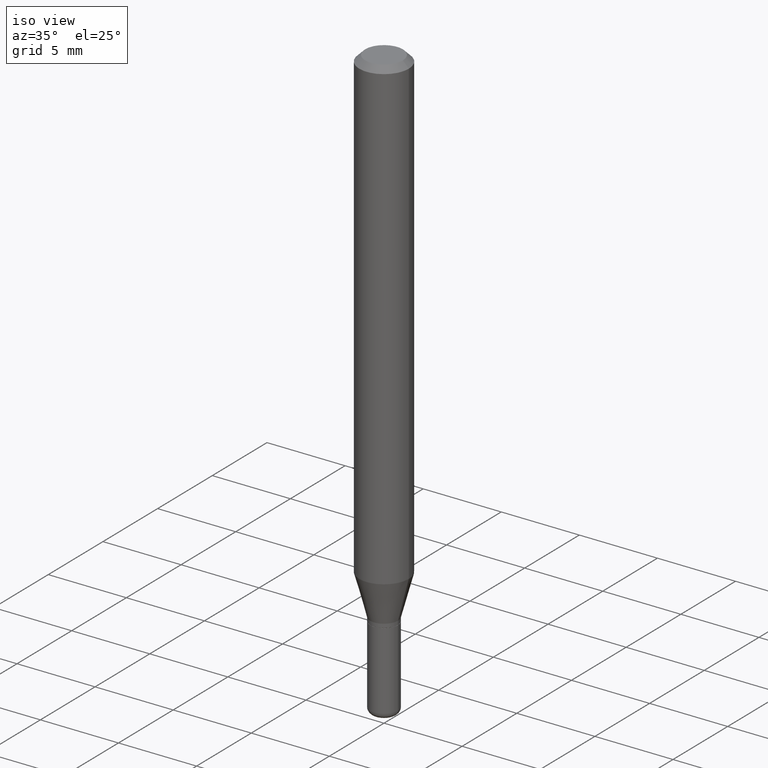
[diagram: clean part render]
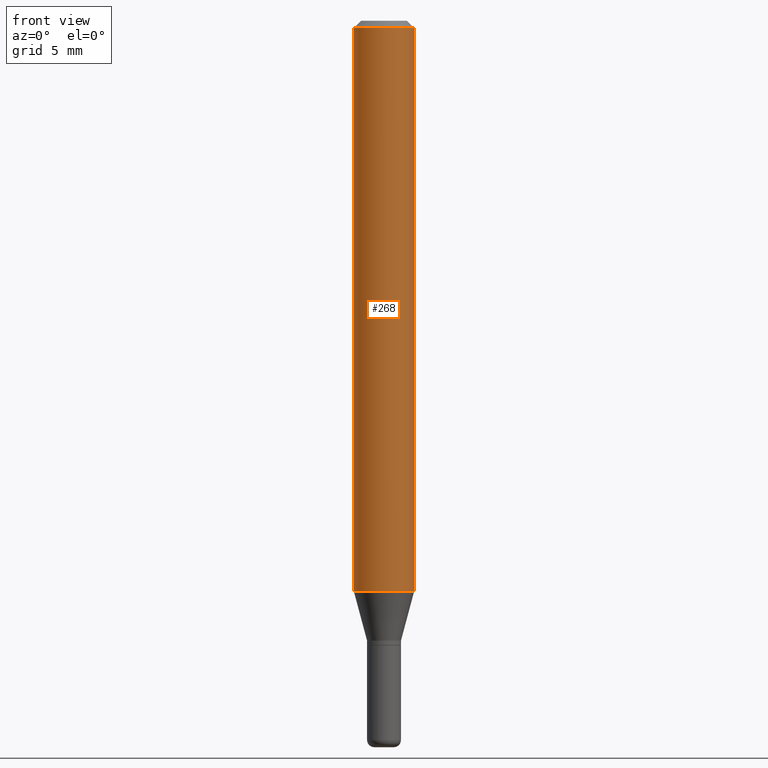
[diagram: tour spotlight — one face highlighted and labeled with its STEP entity id]
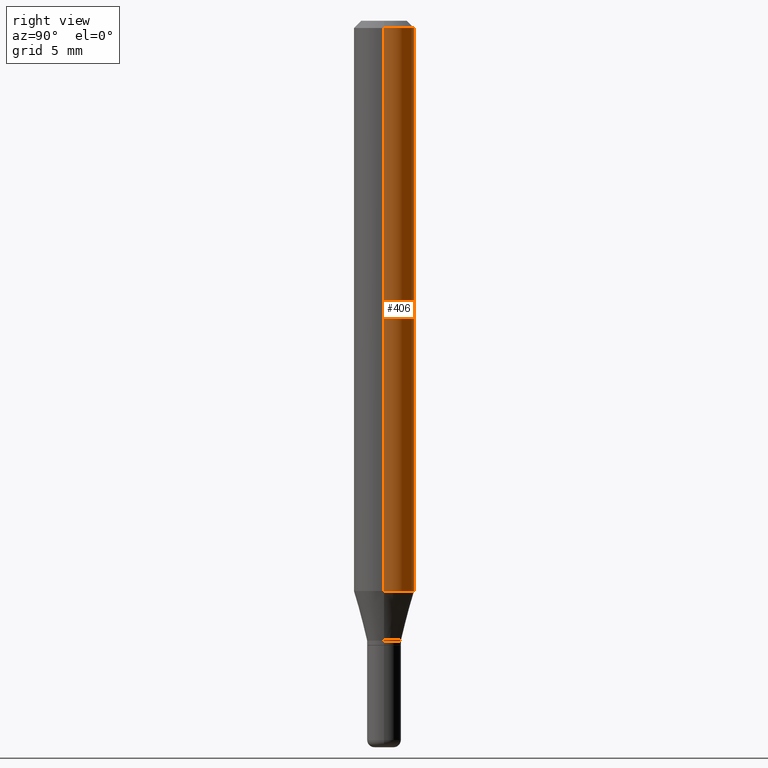
[diagram: tour spotlight — one face highlighted and labeled with its STEP entity id]
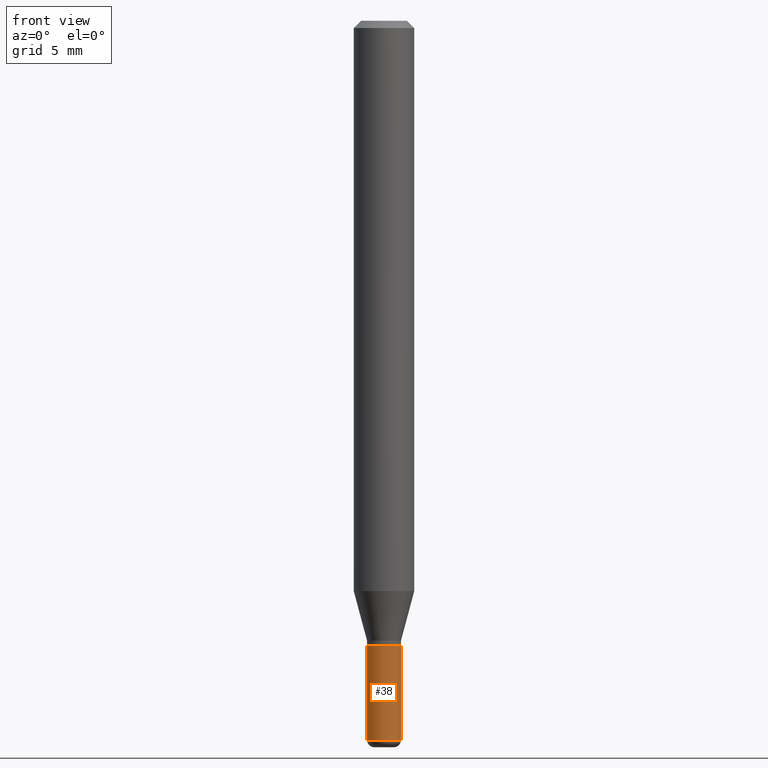
[diagram: tour spotlight — one face highlighted and labeled with its STEP entity id]
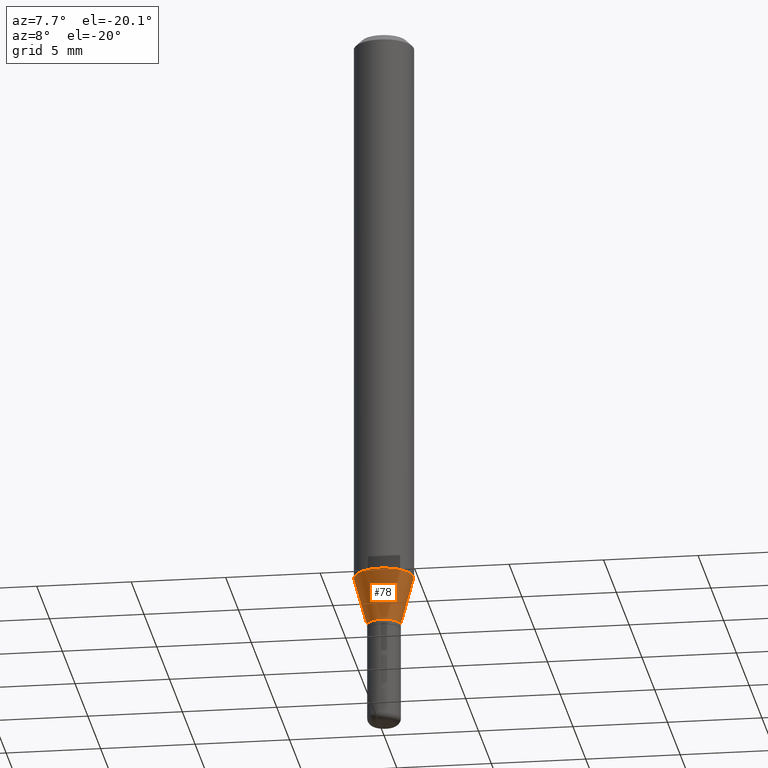
[diagram: tour spotlight — one face highlighted and labeled with its STEP entity id]
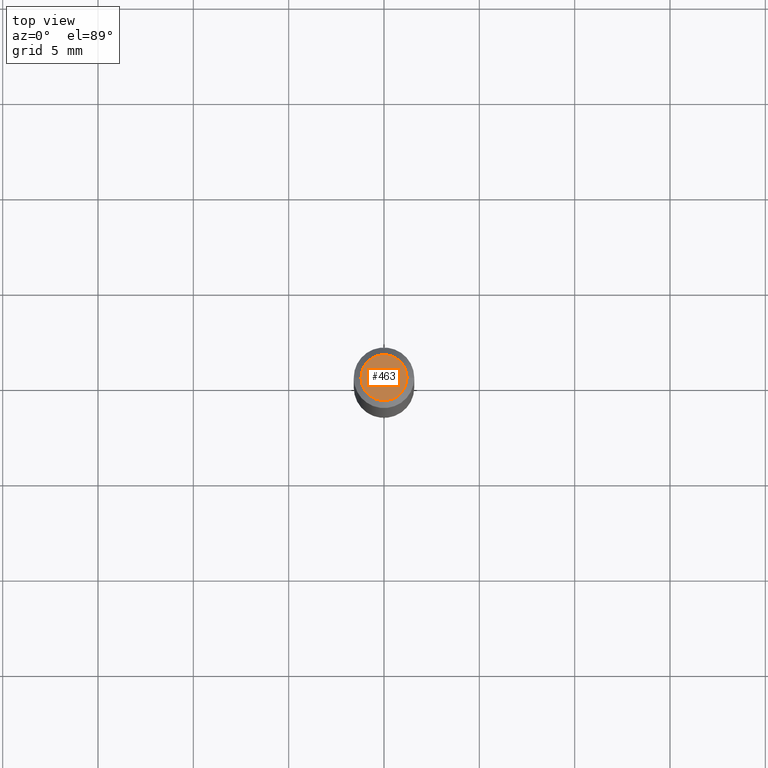
[diagram: tour spotlight — one face highlighted and labeled with its STEP entity id]
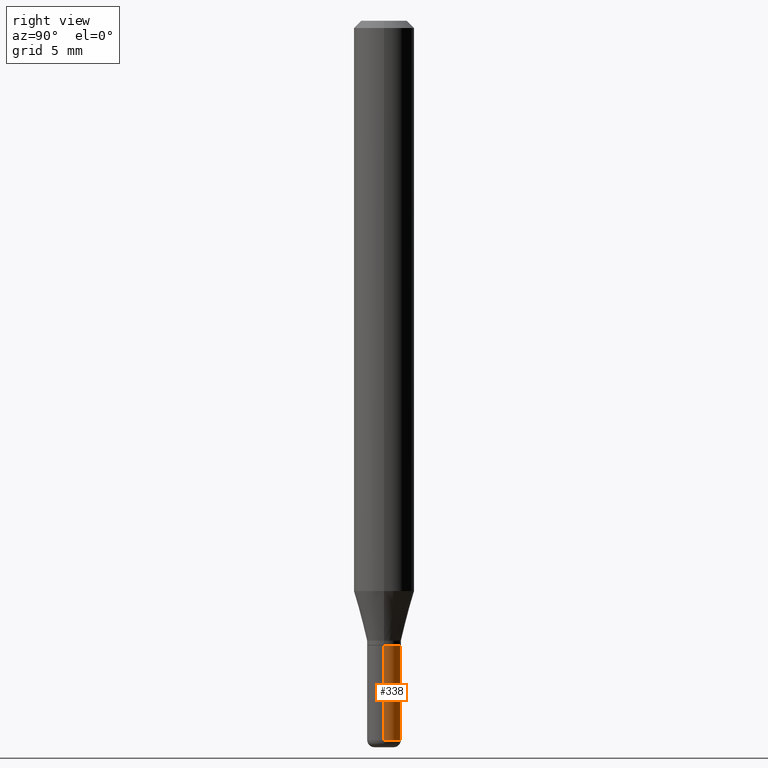
[diagram: tour spotlight — one face highlighted and labeled with its STEP entity id]
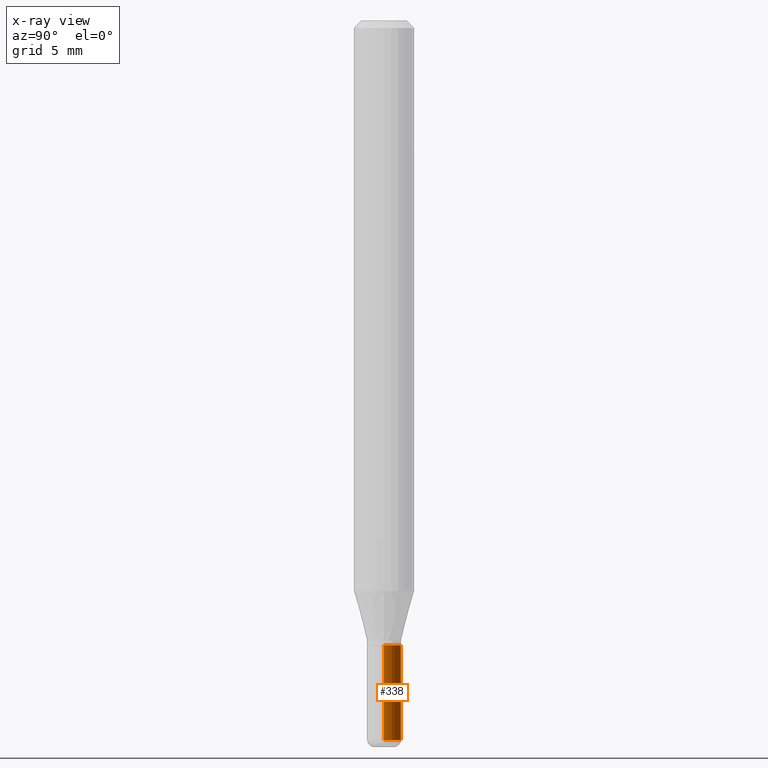
[diagram: x-ray of the same camera — body ghosted, this tour face saturated]
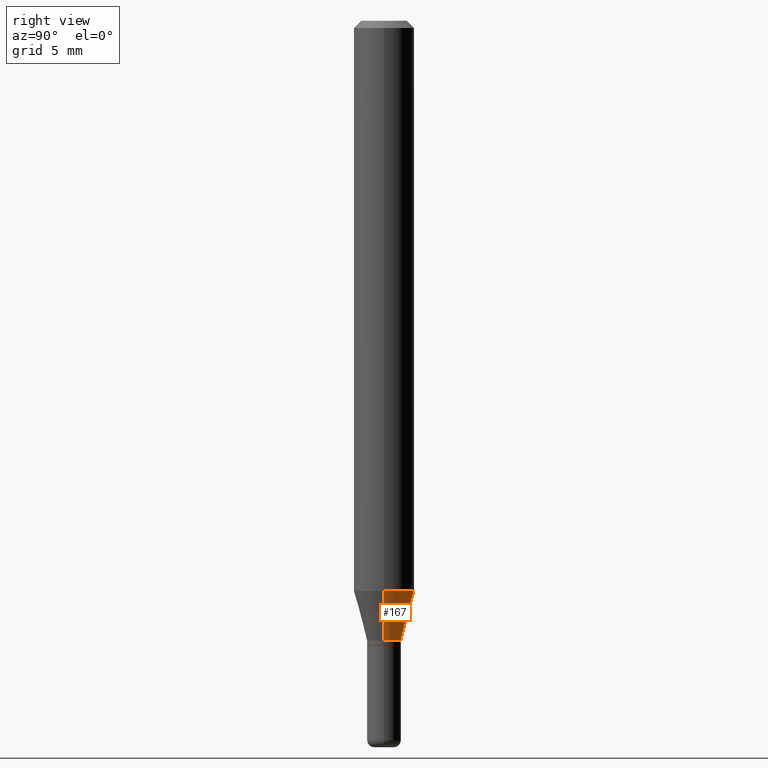
[diagram: tour spotlight — one face highlighted and labeled with its STEP entity id]
A machine part: a face-by-face anatomy tour. The part has 18 B-rep faces; the first image is the clean iso view, then the 7 largest visible faces are spotlighted one at a time (largest first), each with its STEP entity span.

Face 1 — front view, entity #268. In plain terms, the highlighted cylindrical surface (edge-blend (fillet) strip) has radius 1.5875 mm, axis along (-0, 0, 1).
Definition (entity closure, byte-faithful):
#13 = CARTESIAN_POINT ( 'NONE',  ( 3.668203209277632395E-31, -5.237222008264614861E-17, -0.01499999999999970281 ) ) ;
#45 = DIRECTION ( 'NONE',  ( -2.445468806185136597E-29, 3.491481338843145583E-15, 1.000000000000000000 ) ) ;
#48 = VECTOR ( 'NONE', #475, 39.37007874015748143 ) ;
#69 = CARTESIAN_POINT ( 'NONE',  ( -0.06250000000000000000, 4.440892098500626162E-16, -3.074334431409316114E-30 ) ) ;
#75 = CARTESIAN_POINT ( 'NONE',  ( -0.06250000000000000000, -3.666671295737530361E-15, -1.177368602791855734 ) ) ;
#83 = CARTESIAN_POINT ( 'NONE',  ( 0.000000000000000000, 0.000000000000000000, 0.000000000000000000 ) ) ;
#89 = AXIS2_PLACEMENT_3D ( 'NONE', #144, #354, #173 ) ;
#98 = CARTESIAN_POINT ( 'NONE',  ( 0.06250000000000000000, -4.888073874380378612E-16, -0.01499999999999970281 ) ) ;
#143 = VERTEX_POINT ( 'NONE', #150 ) ;
#144 = CARTESIAN_POINT ( 'NONE',  ( 2.879218191509262057E-29, -4.110760505587592188E-15, -1.177368602791855734 ) ) ;
#150 = CARTESIAN_POINT ( 'NONE',  ( -0.06250000000000000000, -1.637477152985056820E-15, -0.01499999999999970281 ) ) ;
#160 = EDGE_CURVE ( 'NONE', #178, #143, #468, .T. ) ;
#173 = DIRECTION ( 'NONE',  ( 1.000000000000000000, -6.982962677686270655E-15, 0.000000000000000000 ) ) ;
#175 = EDGE_CURVE ( 'NONE', #509, #293, #441, .T. ) ;
#178 = VERTEX_POINT ( 'NONE', #75 ) ;
#180 = EDGE_LOOP ( 'NONE', ( #314, #437, #218, #436 ) ) ;
#218 = ORIENTED_EDGE ( 'NONE', *, *, #175, .T. ) ;
#268 = ADVANCED_FACE ( 'NONE', ( #494 ), #291, .T. ) ;
#272 = DIRECTION ( 'NONE',  ( 1.000000000000000000, -6.982962677686266711E-15, 0.000000000000000000 ) ) ;
#284 = AXIS2_PLACEMENT_3D ( 'NONE', #13, #386, #272 ) ;
#291 = CYLINDRICAL_SURFACE ( 'NONE', #491, 0.06250000000000000000 ) ;
#293 = VERTEX_POINT ( 'NONE', #98 ) ;
#314 = ORIENTED_EDGE ( 'NONE', *, *, #160, .F. ) ;
#326 = CIRCLE ( 'NONE', #89, 0.06250000000000000000 ) ;
#343 = DIRECTION ( 'NONE',  ( 1.000000000000000000, -6.982962677686266711E-15, 4.876176775795935793E-29 ) ) ;
#347 = CARTESIAN_POINT ( 'NONE',  ( 0.06250000000000000000, -4.547195672942984647E-15, -1.177368602791855734 ) ) ;
#354 = DIRECTION ( 'NONE',  ( -2.445468806185136597E-29, 3.491481338843145583E-15, 1.000000000000000000 ) ) ;
#356 = CARTESIAN_POINT ( 'NONE',  ( 0.06250000000000000000, -4.364351673553916694E-16, 3.047610484872459871E-30 ) ) ;
#375 = VECTOR ( 'NONE', #429, 39.37007874015748143 ) ;
#386 = DIRECTION ( 'NONE',  ( -2.445468806185136597E-29, 3.491481338843145583E-15, 1.000000000000000000 ) ) ;
#392 = EDGE_CURVE ( 'NONE', #143, #293, #510, .T. ) ;
#429 = DIRECTION ( 'NONE',  ( -2.445468806185136877E-29, 3.491481338843145188E-15, 1.000000000000000000 ) ) ;
#436 = ORIENTED_EDGE ( 'NONE', *, *, #392, .F. ) ;
#437 = ORIENTED_EDGE ( 'NONE', *, *, #477, .T. ) ;
#441 = LINE ( 'NONE', #356, #48 ) ;
#468 = LINE ( 'NONE', #69, #375 ) ;
#475 = DIRECTION ( 'NONE',  ( -2.445468806185136877E-29, 3.491481338843145188E-15, 1.000000000000000000 ) ) ;
#477 = EDGE_CURVE ( 'NONE', #178, #509, #326, .T. ) ;
#491 = AXIS2_PLACEMENT_3D ( 'NONE', #83, #45, #343 ) ;
#494 = FACE_OUTER_BOUND ( 'NONE', #180, .T. ) ;
#509 = VERTEX_POINT ( 'NONE', #347 ) ;
#510 = CIRCLE ( 'NONE', #284, 0.06250000000000000000 ) ;

Face 2 — right view, entity #406. In plain terms, the highlighted cylindrical surface (edge-blend (fillet) strip) has radius 1.5875 mm, axis along (-0, 0, 1).
Definition (entity closure, byte-faithful):
#8 = ORIENTED_EDGE ( 'NONE', *, *, #171, .F. ) ;
#24 = FACE_OUTER_BOUND ( 'NONE', #121, .T. ) ;
#48 = VECTOR ( 'NONE', #475, 39.37007874015748143 ) ;
#69 = CARTESIAN_POINT ( 'NONE',  ( -0.06250000000000000000, 4.440892098500626162E-16, -3.074334431409316114E-30 ) ) ;
#75 = CARTESIAN_POINT ( 'NONE',  ( -0.06250000000000000000, -3.666671295737530361E-15, -1.177368602791855734 ) ) ;
#79 = DIRECTION ( 'NONE',  ( 1.000000000000000000, -6.982962677686266711E-15, 4.876176775795935793E-29 ) ) ;
#97 = ORIENTED_EDGE ( 'NONE', *, *, #175, .F. ) ;
#98 = CARTESIAN_POINT ( 'NONE',  ( 0.06250000000000000000, -4.888073874380378612E-16, -0.01499999999999970281 ) ) ;
#121 = EDGE_LOOP ( 'NONE', ( #514, #332, #8, #97 ) ) ;
#124 = CIRCLE ( 'NONE', #409, 0.06250000000000000000 ) ;
#127 = CARTESIAN_POINT ( 'NONE',  ( 0.000000000000000000, 0.000000000000000000, 0.000000000000000000 ) ) ;
#130 = EDGE_CURVE ( 'NONE', #509, #178, #124, .T. ) ;
#143 = VERTEX_POINT ( 'NONE', #150 ) ;
#150 = CARTESIAN_POINT ( 'NONE',  ( -0.06250000000000000000, -1.637477152985056820E-15, -0.01499999999999970281 ) ) ;
#160 = EDGE_CURVE ( 'NONE', #178, #143, #468, .T. ) ;
#163 = DIRECTION ( 'NONE',  ( -2.445468806185136597E-29, 3.491481338843145583E-15, 1.000000000000000000 ) ) ;
#171 = EDGE_CURVE ( 'NONE', #293, #143, #443, .T. ) ;
#175 = EDGE_CURVE ( 'NONE', #509, #293, #441, .T. ) ;
#178 = VERTEX_POINT ( 'NONE', #75 ) ;
#179 = AXIS2_PLACEMENT_3D ( 'NONE', #127, #163, #79 ) ;
#185 = DIRECTION ( 'NONE',  ( -2.445468806185136597E-29, 3.491481338843145583E-15, 1.000000000000000000 ) ) ;
#188 = CARTESIAN_POINT ( 'NONE',  ( 3.668203209277632395E-31, -5.237222008264614861E-17, -0.01499999999999970281 ) ) ;
#237 = DIRECTION ( 'NONE',  ( 1.000000000000000000, -6.982962677686266711E-15, 0.000000000000000000 ) ) ;
#276 = CYLINDRICAL_SURFACE ( 'NONE', #179, 0.06250000000000000000 ) ;
#293 = VERTEX_POINT ( 'NONE', #98 ) ;
#307 = CARTESIAN_POINT ( 'NONE',  ( 2.879218191509262057E-29, -4.110760505587592188E-15, -1.177368602791855734 ) ) ;
#332 = ORIENTED_EDGE ( 'NONE', *, *, #160, .T. ) ;
#347 = CARTESIAN_POINT ( 'NONE',  ( 0.06250000000000000000, -4.547195672942984647E-15, -1.177368602791855734 ) ) ;
#356 = CARTESIAN_POINT ( 'NONE',  ( 0.06250000000000000000, -4.364351673553916694E-16, 3.047610484872459871E-30 ) ) ;
#375 = VECTOR ( 'NONE', #429, 39.37007874015748143 ) ;
#393 = DIRECTION ( 'NONE',  ( 1.000000000000000000, -6.982962677686270655E-15, 0.000000000000000000 ) ) ;
#406 = ADVANCED_FACE ( 'NONE', ( #24 ), #276, .T. ) ;
#409 = AXIS2_PLACEMENT_3D ( 'NONE', #307, #185, #393 ) ;
#429 = DIRECTION ( 'NONE',  ( -2.445468806185136877E-29, 3.491481338843145188E-15, 1.000000000000000000 ) ) ;
#441 = LINE ( 'NONE', #356, #48 ) ;
#443 = CIRCLE ( 'NONE', #449, 0.06250000000000000000 ) ;
#449 = AXIS2_PLACEMENT_3D ( 'NONE', #188, #511, #237 ) ;
#468 = LINE ( 'NONE', #69, #375 ) ;
#475 = DIRECTION ( 'NONE',  ( -2.445468806185136877E-29, 3.491481338843145188E-15, 1.000000000000000000 ) ) ;
#509 = VERTEX_POINT ( 'NONE', #347 ) ;
#511 = DIRECTION ( 'NONE',  ( -2.445468806185136597E-29, 3.491481338843145583E-15, 1.000000000000000000 ) ) ;
#514 = ORIENTED_EDGE ( 'NONE', *, *, #130, .T. ) ;

Face 3 — front view, entity #38. In plain terms, the highlighted cylindrical surface (edge-blend (fillet) strip) has radius 0.889 mm, axis along (-0, 0, 1).
Definition (entity closure, byte-faithful):
#5 = CARTESIAN_POINT ( 'NONE',  ( 0.000000000000000000, 0.000000000000000000, 0.000000000000000000 ) ) ;
#19 = CIRCLE ( 'NONE', #368, 0.03499999999999998945 ) ;
#29 = AXIS2_PLACEMENT_3D ( 'NONE', #5, #459, #373 ) ;
#38 = ADVANCED_FACE ( 'NONE', ( #380 ), #305, .T. ) ;
#40 = VECTOR ( 'NONE', #351, 39.37007874015748143 ) ;
#70 = DIRECTION ( 'NONE',  ( 1.000000000000000000, -6.982962677686276966E-15, 0.000000000000000000 ) ) ;
#73 = AXIS2_PLACEMENT_3D ( 'NONE', #390, #217, #70 ) ;
#109 = EDGE_CURVE ( 'NONE', #196, #111, #308, .T. ) ;
#111 = VERTEX_POINT ( 'NONE', #435 ) ;
#112 = DIRECTION ( 'NONE',  ( -2.445468806185136597E-29, 3.491481338843145583E-15, 1.000000000000000000 ) ) ;
#116 = DIRECTION ( 'NONE',  ( -2.445468806185136877E-29, 3.491481338843145188E-15, 1.000000000000000000 ) ) ;
#125 = VECTOR ( 'NONE', #116, 39.37007874015748143 ) ;
#146 = LINE ( 'NONE', #507, #125 ) ;
#155 = ORIENTED_EDGE ( 'NONE', *, *, #109, .F. ) ;
#159 = CARTESIAN_POINT ( 'NONE',  ( -0.03499999999999999639, 2.486899575160350394E-16, -1.721627281589216757E-30 ) ) ;
#187 = ORIENTED_EDGE ( 'NONE', *, *, #337, .T. ) ;
#196 = VERTEX_POINT ( 'NONE', #444 ) ;
#217 = DIRECTION ( 'NONE',  ( -2.445468806185136597E-29, 3.491481338843145583E-15, 1.000000000000000000 ) ) ;
#266 = LINE ( 'NONE', #159, #40 ) ;
#305 = CYLINDRICAL_SURFACE ( 'NONE', #29, 0.03499999999999999639 ) ;
#308 = CIRCLE ( 'NONE', #73, 0.03500000000000000333 ) ;
#319 = EDGE_CURVE ( 'NONE', #405, #196, #266, .T. ) ;
#329 = ORIENTED_EDGE ( 'NONE', *, *, #453, .T. ) ;
#337 = EDGE_CURVE ( 'NONE', #467, #111, #146, .T. ) ;
#351 = DIRECTION ( 'NONE',  ( -2.445468806185136877E-29, 3.491481338843145188E-15, 1.000000000000000000 ) ) ;
#368 = AXIS2_PLACEMENT_3D ( 'NONE', #455, #112, #506 ) ;
#373 = DIRECTION ( 'NONE',  ( 1.000000000000000000, -6.982962677686265922E-15, 4.876176775795936353E-29 ) ) ;
#380 = FACE_OUTER_BOUND ( 'NONE', #496, .T. ) ;
#381 = CARTESIAN_POINT ( 'NONE',  ( 0.03499999999999998945, -5.429253481901091458E-15, -1.485000000000000098 ) ) ;
#390 = CARTESIAN_POINT ( 'NONE',  ( 3.154654759978826367E-29, -4.504010927107658279E-15, -1.290000000000000258 ) ) ;
#391 = CARTESIAN_POINT ( 'NONE',  ( -0.03499999999999998945, -4.595740400128830388E-15, -1.485000000000000098 ) ) ;
#405 = VERTEX_POINT ( 'NONE', #391 ) ;
#435 = CARTESIAN_POINT ( 'NONE',  ( 0.03500000000000000333, -4.748414620826678245E-15, -1.290000000000000258 ) ) ;
#444 = CARTESIAN_POINT ( 'NONE',  ( -0.03500000000000000333, -4.595740400128830388E-15, -1.290000000000000258 ) ) ;
#453 = EDGE_CURVE ( 'NONE', #405, #467, #19, .T. ) ;
#455 = CARTESIAN_POINT ( 'NONE',  ( 3.631521177184928138E-29, -5.184849788182071492E-15, -1.485000000000000098 ) ) ;
#459 = DIRECTION ( 'NONE',  ( -2.445468806185136597E-29, 3.491481338843145583E-15, 1.000000000000000000 ) ) ;
#467 = VERTEX_POINT ( 'NONE', #381 ) ;
#496 = EDGE_LOOP ( 'NONE', ( #512, #329, #187, #155 ) ) ;
#506 = DIRECTION ( 'NONE',  ( 1.000000000000000000, -6.982962677686280121E-15, 0.000000000000000000 ) ) ;
#507 = CARTESIAN_POINT ( 'NONE',  ( 0.03499999999999999639, -2.444036937190192757E-16, 1.706661871528577457E-30 ) ) ;
#512 = ORIENTED_EDGE ( 'NONE', *, *, #319, .F. ) ;

Face 4 — auxiliary view, entity #78. In plain terms, the highlighted conical surface has half-angle 15 deg.
Definition (entity closure, byte-faithful):
#2 = VECTOR ( 'NONE', #376, 39.37007874015748854 ) ;
#10 = CONICAL_SURFACE ( 'NONE', #136, 0.03499999999999998251, 0.2617993877991494633 ) ;
#26 = ORIENTED_EDGE ( 'NONE', *, *, #82, .F. ) ;
#37 = VERTEX_POINT ( 'NONE', #297 ) ;
#54 = DIRECTION ( 'NONE',  ( 0.2588190451025207395, 1.565188264969626109E-15, 0.9659258262890682012 ) ) ;
#56 = CARTESIAN_POINT ( 'NONE',  ( 3.130200071916974821E-29, -4.469096113719226630E-15, -1.280000000000000027 ) ) ;
#57 = CIRCLE ( 'NONE', #211, 0.03499999999999998251 ) ;
#75 = CARTESIAN_POINT ( 'NONE',  ( -0.06250000000000000000, -3.666671295737530361E-15, -1.177368602791855734 ) ) ;
#78 = ADVANCED_FACE ( 'NONE', ( #415 ), #10, .T. ) ;
#82 = EDGE_CURVE ( 'NONE', #504, #178, #336, .T. ) ;
#89 = AXIS2_PLACEMENT_3D ( 'NONE', #144, #354, #173 ) ;
#117 = DIRECTION ( 'NONE',  ( -2.445468806185136597E-29, 3.491481338843145583E-15, 1.000000000000000000 ) ) ;
#128 = ORIENTED_EDGE ( 'NONE', *, *, #295, .T. ) ;
#136 = AXIS2_PLACEMENT_3D ( 'NONE', #56, #212, #166 ) ;
#144 = CARTESIAN_POINT ( 'NONE',  ( 2.879218191509262057E-29, -4.110760505587592188E-15, -1.177368602791855734 ) ) ;
#166 = DIRECTION ( 'NONE',  ( 1.000000000000000000, -6.982962677686253300E-15, 0.000000000000000000 ) ) ;
#173 = DIRECTION ( 'NONE',  ( 1.000000000000000000, -6.982962677686270655E-15, 0.000000000000000000 ) ) ;
#176 = DIRECTION ( 'NONE',  ( 1.000000000000000000, -6.982962677686253300E-15, 0.000000000000000000 ) ) ;
#177 = CARTESIAN_POINT ( 'NONE',  ( -0.03499999999999998251, -3.943538725970360852E-15, -1.280000000000000027 ) ) ;
#178 = VERTEX_POINT ( 'NONE', #75 ) ;
#199 = ORIENTED_EDGE ( 'NONE', *, *, #355, .T. ) ;
#211 = AXIS2_PLACEMENT_3D ( 'NONE', #414, #117, #176 ) ;
#212 = DIRECTION ( 'NONE',  ( -2.445468806185136597E-29, 3.491481338843145583E-15, 1.000000000000000000 ) ) ;
#267 = CARTESIAN_POINT ( 'NONE',  ( 0.03499999999999998251, -4.713499807438245807E-15, -1.280000000000000027 ) ) ;
#295 = EDGE_CURVE ( 'NONE', #504, #37, #57, .T. ) ;
#297 = CARTESIAN_POINT ( 'NONE',  ( 0.03499999999999998251, -4.713499807438245807E-15, -1.280000000000000027 ) ) ;
#309 = VECTOR ( 'NONE', #54, 39.37007874015748854 ) ;
#325 = EDGE_LOOP ( 'NONE', ( #26, #128, #199, #484 ) ) ;
#326 = CIRCLE ( 'NONE', #89, 0.06250000000000000000 ) ;
#336 = LINE ( 'NONE', #452, #2 ) ;
#347 = CARTESIAN_POINT ( 'NONE',  ( 0.06250000000000000000, -4.547195672942984647E-15, -1.177368602791855734 ) ) ;
#354 = DIRECTION ( 'NONE',  ( -2.445468806185136597E-29, 3.491481338843145583E-15, 1.000000000000000000 ) ) ;
#355 = EDGE_CURVE ( 'NONE', #37, #509, #422, .T. ) ;
#376 = DIRECTION ( 'NONE',  ( -0.2588190451025207395, 5.211531920934546309E-15, 0.9659258262890682012 ) ) ;
#414 = CARTESIAN_POINT ( 'NONE',  ( 3.130200071916974821E-29, -4.469096113719226630E-15, -1.280000000000000027 ) ) ;
#415 = FACE_OUTER_BOUND ( 'NONE', #325, .T. ) ;
#422 = LINE ( 'NONE', #267, #309 ) ;
#452 = CARTESIAN_POINT ( 'NONE',  ( -0.03499999999999998251, -4.220406156203192133E-15, -1.280000000000000027 ) ) ;
#477 = EDGE_CURVE ( 'NONE', #178, #509, #326, .T. ) ;
#484 = ORIENTED_EDGE ( 'NONE', *, *, #477, .F. ) ;
#504 = VERTEX_POINT ( 'NONE', #177 ) ;
#509 = VERTEX_POINT ( 'NONE', #347 ) ;

Face 5 — top view, entity #463. In plain terms, the highlighted planar face has unit normal (0, -0, -1).
Definition (entity closure, byte-faithful):
#1 = ORIENTED_EDGE ( 'NONE', *, *, #502, .T. ) ;
#16 = CARTESIAN_POINT ( 'NONE',  ( -6.680649051745406845E-45, 9.538196290434862081E-31, 2.731847993664263218E-16 ) ) ;
#65 = CARTESIAN_POINT ( 'NONE',  ( 3.316907271900976589E-16, 0.04750000000000000749, -2.925296391183627249E-17 ) ) ;
#80 = CIRCLE ( 'NONE', #235, 0.04750000000000000749 ) ;
#94 = CARTESIAN_POINT ( 'NONE',  ( -6.680649051745406845E-45, 9.538196290434862081E-31, 2.731847993664263218E-16 ) ) ;
#147 = EDGE_LOOP ( 'NONE', ( #1, #255 ) ) ;
#153 = CARTESIAN_POINT ( 'NONE',  ( -0.04750000000000000749, 3.578768372314221353E-16, 2.731847993664239060E-16 ) ) ;
#186 = VERTEX_POINT ( 'NONE', #153 ) ;
#198 = AXIS2_PLACEMENT_3D ( 'NONE', #65, #462, #214 ) ;
#205 = AXIS2_PLACEMENT_3D ( 'NONE', #16, #216, #430 ) ;
#214 = DIRECTION ( 'NONE',  ( -1.000000000000000000, 6.982962677686265922E-15, -4.876176775795935793E-29 ) ) ;
#216 = DIRECTION ( 'NONE',  ( -2.445468806185136597E-29, 3.491481338843145583E-15, 1.000000000000000000 ) ) ;
#235 = AXIS2_PLACEMENT_3D ( 'NONE', #94, #248, #254 ) ;
#248 = DIRECTION ( 'NONE',  ( -2.445468806185136597E-29, 3.491481338843145583E-15, 1.000000000000000000 ) ) ;
#251 = EDGE_CURVE ( 'NONE', #447, #186, #80, .T. ) ;
#254 = DIRECTION ( 'NONE',  ( 1.000000000000000000, -6.982962677686266711E-15, 4.852736867747365086E-29 ) ) ;
#255 = ORIENTED_EDGE ( 'NONE', *, *, #251, .T. ) ;
#296 = CARTESIAN_POINT ( 'NONE',  ( 0.04750000000000000749, -4.035134999187568762E-16, 2.731847993664288856E-16 ) ) ;
#413 = PLANE ( 'NONE',  #198 ) ;
#430 = DIRECTION ( 'NONE',  ( 1.000000000000000000, -6.982962677686266711E-15, 4.852736867747365086E-29 ) ) ;
#431 = FACE_OUTER_BOUND ( 'NONE', #147, .T. ) ;
#447 = VERTEX_POINT ( 'NONE', #296 ) ;
#462 = DIRECTION ( 'NONE',  ( 2.438088387897960049E-29, -3.491481338843145188E-15, -1.000000000000000000 ) ) ;
#463 = ADVANCED_FACE ( 'NONE', ( #431 ), #413, .F. ) ;
#474 = CIRCLE ( 'NONE', #205, 0.04750000000000000749 ) ;
#502 = EDGE_CURVE ( 'NONE', #186, #447, #474, .T. ) ;

Face 6 — right view, entity #338. An x-ray twin of the same camera follows (body ghosted, this face saturated) — the face is partly hidden behind the body. In plain terms, the highlighted cylindrical surface (edge-blend (fillet) strip) has radius 0.889 mm, axis along (-0, 0, 1).
Definition (entity closure, byte-faithful):
#15 = ORIENTED_EDGE ( 'NONE', *, *, #337, .F. ) ;
#30 = AXIS2_PLACEMENT_3D ( 'NONE', #274, #232, #425 ) ;
#34 = DIRECTION ( 'NONE',  ( -2.445468806185136597E-29, 3.491481338843145583E-15, 1.000000000000000000 ) ) ;
#40 = VECTOR ( 'NONE', #351, 39.37007874015748143 ) ;
#111 = VERTEX_POINT ( 'NONE', #435 ) ;
#114 = EDGE_LOOP ( 'NONE', ( #369, #257, #352, #15 ) ) ;
#116 = DIRECTION ( 'NONE',  ( -2.445468806185136877E-29, 3.491481338843145188E-15, 1.000000000000000000 ) ) ;
#123 = EDGE_CURVE ( 'NONE', #467, #405, #283, .T. ) ;
#125 = VECTOR ( 'NONE', #116, 39.37007874015748143 ) ;
#131 = DIRECTION ( 'NONE',  ( -2.445468806185136597E-29, 3.491481338843145583E-15, 1.000000000000000000 ) ) ;
#146 = LINE ( 'NONE', #507, #125 ) ;
#149 = FACE_OUTER_BOUND ( 'NONE', #114, .T. ) ;
#159 = CARTESIAN_POINT ( 'NONE',  ( -0.03499999999999999639, 2.486899575160350394E-16, -1.721627281589216757E-30 ) ) ;
#196 = VERTEX_POINT ( 'NONE', #444 ) ;
#204 = AXIS2_PLACEMENT_3D ( 'NONE', #245, #131, #442 ) ;
#215 = EDGE_CURVE ( 'NONE', #111, #196, #488, .T. ) ;
#232 = DIRECTION ( 'NONE',  ( -2.445468806185136597E-29, 3.491481338843145583E-15, 1.000000000000000000 ) ) ;
#245 = CARTESIAN_POINT ( 'NONE',  ( 3.154654759978826367E-29, -4.504010927107658279E-15, -1.290000000000000258 ) ) ;
#257 = ORIENTED_EDGE ( 'NONE', *, *, #319, .T. ) ;
#265 = CYLINDRICAL_SURFACE ( 'NONE', #30, 0.03499999999999999639 ) ;
#266 = LINE ( 'NONE', #159, #40 ) ;
#274 = CARTESIAN_POINT ( 'NONE',  ( 0.000000000000000000, 0.000000000000000000, 0.000000000000000000 ) ) ;
#283 = CIRCLE ( 'NONE', #345, 0.03499999999999998945 ) ;
#319 = EDGE_CURVE ( 'NONE', #405, #196, #266, .T. ) ;
#337 = EDGE_CURVE ( 'NONE', #467, #111, #146, .T. ) ;
#338 = ADVANCED_FACE ( 'NONE', ( #149 ), #265, .T. ) ;
#345 = AXIS2_PLACEMENT_3D ( 'NONE', #513, #34, #457 ) ;
#351 = DIRECTION ( 'NONE',  ( -2.445468806185136877E-29, 3.491481338843145188E-15, 1.000000000000000000 ) ) ;
#352 = ORIENTED_EDGE ( 'NONE', *, *, #215, .F. ) ;
#369 = ORIENTED_EDGE ( 'NONE', *, *, #123, .T. ) ;
#381 = CARTESIAN_POINT ( 'NONE',  ( 0.03499999999999998945, -5.429253481901091458E-15, -1.485000000000000098 ) ) ;
#391 = CARTESIAN_POINT ( 'NONE',  ( -0.03499999999999998945, -4.595740400128830388E-15, -1.485000000000000098 ) ) ;
#405 = VERTEX_POINT ( 'NONE', #391 ) ;
#425 = DIRECTION ( 'NONE',  ( 1.000000000000000000, -6.982962677686265922E-15, 4.876176775795936353E-29 ) ) ;
#435 = CARTESIAN_POINT ( 'NONE',  ( 0.03500000000000000333, -4.748414620826678245E-15, -1.290000000000000258 ) ) ;
#442 = DIRECTION ( 'NONE',  ( 1.000000000000000000, -6.982962677686276966E-15, 0.000000000000000000 ) ) ;
#444 = CARTESIAN_POINT ( 'NONE',  ( -0.03500000000000000333, -4.595740400128830388E-15, -1.290000000000000258 ) ) ;
#457 = DIRECTION ( 'NONE',  ( 1.000000000000000000, -6.982962677686280121E-15, 0.000000000000000000 ) ) ;
#467 = VERTEX_POINT ( 'NONE', #381 ) ;
#488 = CIRCLE ( 'NONE', #204, 0.03500000000000000333 ) ;
#507 = CARTESIAN_POINT ( 'NONE',  ( 0.03499999999999999639, -2.444036937190192757E-16, 1.706661871528577457E-30 ) ) ;
#513 = CARTESIAN_POINT ( 'NONE',  ( 3.631521177184928138E-29, -5.184849788182071492E-15, -1.485000000000000098 ) ) ;

Face 7 — right view, entity #167. In plain terms, the highlighted conical surface has half-angle 15 deg.
Definition (entity closure, byte-faithful):
#2 = VECTOR ( 'NONE', #376, 39.37007874015748854 ) ;
#37 = VERTEX_POINT ( 'NONE', #297 ) ;
#54 = DIRECTION ( 'NONE',  ( 0.2588190451025207395, 1.565188264969626109E-15, 0.9659258262890682012 ) ) ;
#74 = AXIS2_PLACEMENT_3D ( 'NONE', #353, #438, #233 ) ;
#75 = CARTESIAN_POINT ( 'NONE',  ( -0.06250000000000000000, -3.666671295737530361E-15, -1.177368602791855734 ) ) ;
#76 = CONICAL_SURFACE ( 'NONE', #434, 0.03499999999999998251, 0.2617993877991494633 ) ;
#82 = EDGE_CURVE ( 'NONE', #504, #178, #336, .T. ) ;
#84 = ORIENTED_EDGE ( 'NONE', *, *, #355, .F. ) ;
#91 = ORIENTED_EDGE ( 'NONE', *, *, #139, .T. ) ;
#106 = EDGE_LOOP ( 'NONE', ( #91, #366, #472, #84 ) ) ;
#124 = CIRCLE ( 'NONE', #409, 0.06250000000000000000 ) ;
#130 = EDGE_CURVE ( 'NONE', #509, #178, #124, .T. ) ;
#139 = EDGE_CURVE ( 'NONE', #37, #504, #250, .T. ) ;
#167 = ADVANCED_FACE ( 'NONE', ( #270 ), #76, .T. ) ;
#177 = CARTESIAN_POINT ( 'NONE',  ( -0.03499999999999998251, -3.943538725970360852E-15, -1.280000000000000027 ) ) ;
#178 = VERTEX_POINT ( 'NONE', #75 ) ;
#185 = DIRECTION ( 'NONE',  ( -2.445468806185136597E-29, 3.491481338843145583E-15, 1.000000000000000000 ) ) ;
#233 = DIRECTION ( 'NONE',  ( 1.000000000000000000, -6.982962677686253300E-15, 0.000000000000000000 ) ) ;
#250 = CIRCLE ( 'NONE', #74, 0.03499999999999998251 ) ;
#267 = CARTESIAN_POINT ( 'NONE',  ( 0.03499999999999998251, -4.713499807438245807E-15, -1.280000000000000027 ) ) ;
#270 = FACE_OUTER_BOUND ( 'NONE', #106, .T. ) ;
#297 = CARTESIAN_POINT ( 'NONE',  ( 0.03499999999999998251, -4.713499807438245807E-15, -1.280000000000000027 ) ) ;
#307 = CARTESIAN_POINT ( 'NONE',  ( 2.879218191509262057E-29, -4.110760505587592188E-15, -1.177368602791855734 ) ) ;
#309 = VECTOR ( 'NONE', #54, 39.37007874015748854 ) ;
#318 = DIRECTION ( 'NONE',  ( -2.445468806185136597E-29, 3.491481338843145583E-15, 1.000000000000000000 ) ) ;
#324 = DIRECTION ( 'NONE',  ( 1.000000000000000000, -6.982962677686253300E-15, 0.000000000000000000 ) ) ;
#336 = LINE ( 'NONE', #452, #2 ) ;
#347 = CARTESIAN_POINT ( 'NONE',  ( 0.06250000000000000000, -4.547195672942984647E-15, -1.177368602791855734 ) ) ;
#353 = CARTESIAN_POINT ( 'NONE',  ( 3.130200071916974821E-29, -4.469096113719226630E-15, -1.280000000000000027 ) ) ;
#355 = EDGE_CURVE ( 'NONE', #37, #509, #422, .T. ) ;
#366 = ORIENTED_EDGE ( 'NONE', *, *, #82, .T. ) ;
#376 = DIRECTION ( 'NONE',  ( -0.2588190451025207395, 5.211531920934546309E-15, 0.9659258262890682012 ) ) ;
#393 = DIRECTION ( 'NONE',  ( 1.000000000000000000, -6.982962677686270655E-15, 0.000000000000000000 ) ) ;
#409 = AXIS2_PLACEMENT_3D ( 'NONE', #307, #185, #393 ) ;
#422 = LINE ( 'NONE', #267, #309 ) ;
#433 = CARTESIAN_POINT ( 'NONE',  ( 3.130200071916974821E-29, -4.469096113719226630E-15, -1.280000000000000027 ) ) ;
#434 = AXIS2_PLACEMENT_3D ( 'NONE', #433, #318, #324 ) ;
#438 = DIRECTION ( 'NONE',  ( -2.445468806185136597E-29, 3.491481338843145583E-15, 1.000000000000000000 ) ) ;
#452 = CARTESIAN_POINT ( 'NONE',  ( -0.03499999999999998251, -4.220406156203192133E-15, -1.280000000000000027 ) ) ;
#472 = ORIENTED_EDGE ( 'NONE', *, *, #130, .F. ) ;
#504 = VERTEX_POINT ( 'NONE', #177 ) ;
#509 = VERTEX_POINT ( 'NONE', #347 ) ;